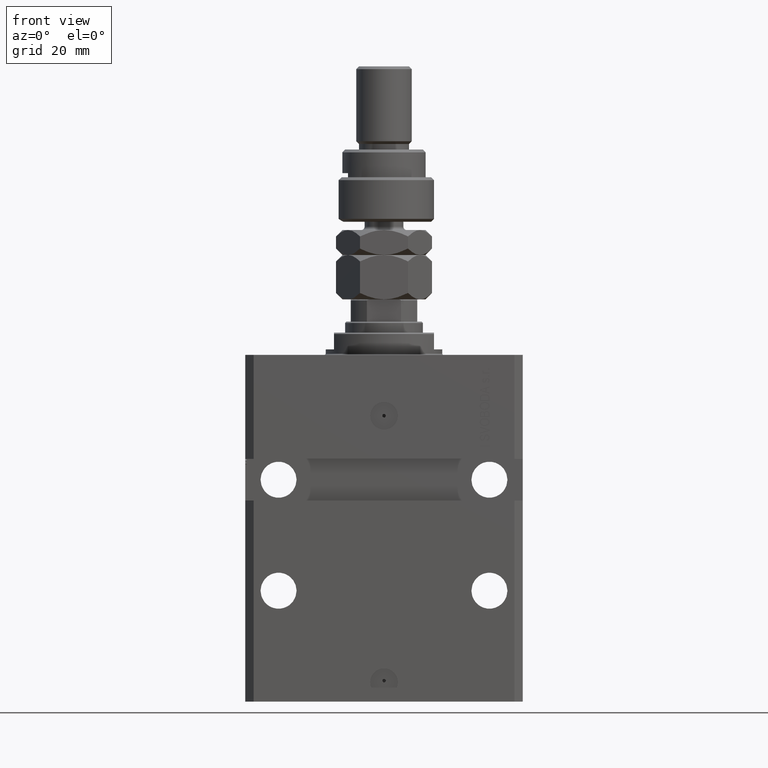
[diagram: clean part render]
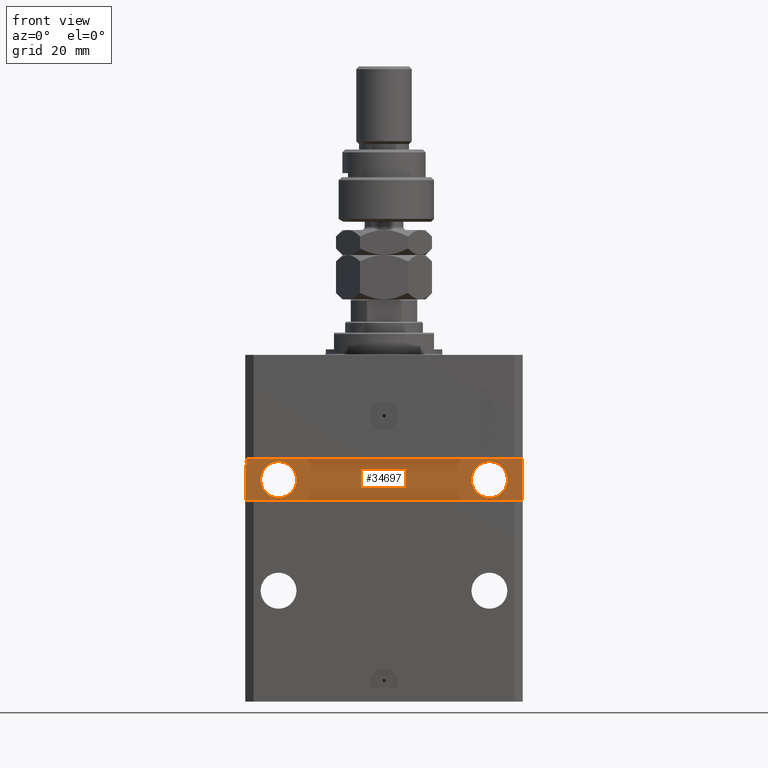
[diagram: same view with one face highlighted and labeled with its STEP entity id]
A machine part, front view. The second image highlights one B-rep face of the part: STEP entity #34697.
In plain terms, the highlighted planar face has unit normal (0, -1, 0).
Its self-contained STEP definition (entity closure, byte-faithful):
#507 = CIRCLE ( 'NONE', #27682, 6.499999999999999112 ) ;
#565 = CARTESIAN_POINT ( 'NONE',  ( -49.50000000000000711, -32.50000000000000711, -37.99999999999999289 ) ) ;
#654 = VECTOR ( 'NONE', #12902, 1000.000000000000000 ) ;
#825 = EDGE_LOOP ( 'NONE', ( #48045, #41441, #9335, #9386, #28758, #48942, #4748, #17141, #31342, #40549, #2488, #8431 ) ) ;
#1112 = LINE ( 'NONE', #1879, #7218 ) ;
#1551 = LINE ( 'NONE', #14173, #29982 ) ;
#1632 = DIRECTION ( 'NONE',  ( 1.000000000000000000, 1.387778780781445676E-16, 1.387778780781445676E-16 ) ) ;
#1879 = CARTESIAN_POINT ( 'NONE',  ( -50.00000000000001421, -32.50000000000000711, -52.50000000000000000 ) ) ;
#1882 = VECTOR ( 'NONE', #29688, 1000.000000000000000 ) ;
#1892 = VERTEX_POINT ( 'NONE', #19549 ) ;
#2255 = DIRECTION ( 'NONE',  ( 1.000000000000000000, 0.000000000000000000, 0.000000000000000000 ) ) ;
#2440 = CARTESIAN_POINT ( 'NONE',  ( -50.00000000000001421, -32.50000000000000711, -38.87066340383893959 ) ) ;
#2446 = ORIENTED_EDGE ( 'NONE', *, *, #40311, .F. ) ;
#2488 = ORIENTED_EDGE ( 'NONE', *, *, #51044, .T. ) ;
#2601 = LINE ( 'NONE', #10335, #41249 ) ;
#2623 = EDGE_CURVE ( 'NONE', #45923, #33129, #50631, .T. ) ;
#2709 = DIRECTION ( 'NONE',  ( 0.000000000000000000, 0.000000000000000000, -1.000000000000000000 ) ) ;
#2801 = EDGE_CURVE ( 'NONE', #21643, #12951, #45695, .T. ) ;
#4748 = ORIENTED_EDGE ( 'NONE', *, *, #2801, .T. ) ;
#4764 = ORIENTED_EDGE ( 'NONE', *, *, #27786, .F. ) ;
#5071 = EDGE_CURVE ( 'NONE', #20356, #33129, #1551, .T. ) ;
#5143 = FACE_OUTER_BOUND ( 'NONE', #825, .T. ) ;
#5370 = CARTESIAN_POINT ( 'NONE',  ( -49.49999999999999289, -32.50000000000000711, -39.43474004052496440 ) ) ;
#6104 = LINE ( 'NONE', #49488, #30396 ) ;
#7218 = VECTOR ( 'NONE', #1632, 1000.000000000000000 ) ;
#8261 = FACE_BOUND ( 'NONE', #26591, .T. ) ;
#8412 = LINE ( 'NONE', #24665, #34281 ) ;
#8431 = ORIENTED_EDGE ( 'NONE', *, *, #50920, .T. ) ;
#9335 = ORIENTED_EDGE ( 'NONE', *, *, #44278, .F. ) ;
#9386 = ORIENTED_EDGE ( 'NONE', *, *, #26863, .F. ) ;
#9481 = VERTEX_POINT ( 'NONE', #26756 ) ;
#9796 = LINE ( 'NONE', #20368, #654 ) ;
#9806 = DIRECTION ( 'NONE',  ( 1.000000000000000000, 0.000000000000000000, 0.000000000000000000 ) ) ;
#10335 = CARTESIAN_POINT ( 'NONE',  ( -50.00000000000001421, -32.50000000000000711, -37.50000000000000711 ) ) ;
#10529 = VECTOR ( 'NONE', #45991, 1000.000000000000000 ) ;
#11235 = CARTESIAN_POINT ( 'NONE',  ( 38.00000000000001421, -32.50000000000000000, -45.00000000000000000 ) ) ;
#11633 = DIRECTION ( 'NONE',  ( -1.000000000000000000, -0.000000000000000000, -0.000000000000000000 ) ) ;
#12155 = VERTEX_POINT ( 'NONE', #5370 ) ;
#12486 = VERTEX_POINT ( 'NONE', #565 ) ;
#12902 = DIRECTION ( 'NONE',  ( 0.000000000000000000, 0.000000000000000000, -1.000000000000000000 ) ) ;
#12951 = VERTEX_POINT ( 'NONE', #35268 ) ;
#13265 = VERTEX_POINT ( 'NONE', #37577 ) ;
#13944 = CARTESIAN_POINT ( 'NONE',  ( 49.99999999999999289, -32.49999999999999289, -52.49999999999998579 ) ) ;
#14020 = VERTEX_POINT ( 'NONE', #39410 ) ;
#14173 = CARTESIAN_POINT ( 'NONE',  ( -50.00000000000001421, -32.50000000000000711, -37.50000000000000711 ) ) ;
#14363 = CIRCLE ( 'NONE', #49826, 6.499999999999999112 ) ;
#14865 = CARTESIAN_POINT ( 'NONE',  ( -49.49999999999977973, -32.50000000000000711, -38.87066337907741342 ) ) ;
#15342 = VERTEX_POINT ( 'NONE', #14865 ) ;
#17141 = ORIENTED_EDGE ( 'NONE', *, *, #50464, .T. ) ;
#18437 = LINE ( 'NONE', #38305, #38549 ) ;
#18749 = EDGE_CURVE ( 'NONE', #38070, #46787, #47414, .T. ) ;
#19329 = ORIENTED_EDGE ( 'NONE', *, *, #20885, .F. ) ;
#19549 = CARTESIAN_POINT ( 'NONE',  ( -50.00000000000001421, -32.50000000000000711, -39.43474002179300442 ) ) ;
#19968 = EDGE_CURVE ( 'NONE', #15342, #30393, #44207, .T. ) ;
#20096 = DIRECTION ( 'NONE',  ( 1.000000000000000000, 1.387778780781445676E-16, 0.000000000000000000 ) ) ;
#20260 = CARTESIAN_POINT ( 'NONE',  ( 38.00000000000001421, -32.50000000000000000, -45.00000000000000000 ) ) ;
#20356 = VERTEX_POINT ( 'NONE', #22678 ) ;
#20368 = CARTESIAN_POINT ( 'NONE',  ( -49.50000000000000711, -32.49999999999999289, -37.62144886363635976 ) ) ;
#20885 = EDGE_CURVE ( 'NONE', #9481, #14020, #507, .T. ) ;
#20886 = DIRECTION ( 'NONE',  ( 1.101411730780568590E-16, -1.000000000000000000, 0.000000000000000000 ) ) ;
#21643 = VERTEX_POINT ( 'NONE', #44952 ) ;
#21852 = CARTESIAN_POINT ( 'NONE',  ( -49.50000000000000711, -32.50000000000000711, -37.62144886363635976 ) ) ;
#22028 = DIRECTION ( 'NONE',  ( -1.000000000000000000, -1.387778780781445676E-16, -1.387778780781445676E-16 ) ) ;
#22169 = DIRECTION ( 'NONE',  ( 0.000000000000000000, 0.000000000000000000, -1.000000000000000000 ) ) ;
#22228 = CARTESIAN_POINT ( 'NONE',  ( -49.50000000000000711, -32.49999999999999289, -37.99999999999999289 ) ) ;
#22283 = CARTESIAN_POINT ( 'NONE',  ( 49.99999999999999289, -32.49999999999999289, -37.49999999999999289 ) ) ;
#22678 = CARTESIAN_POINT ( 'NONE',  ( -50.00000000000001421, -32.50000000000000711, -37.50000000000000711 ) ) ;
#23033 = LINE ( 'NONE', #22283, #27826 ) ;
#23515 = EDGE_CURVE ( 'NONE', #47209, #21643, #1112, .T. ) ;
#23987 = PLANE ( 'NONE',  #33837 ) ;
#24665 = CARTESIAN_POINT ( 'NONE',  ( -49.50000000000016342, -32.50000000000000711, -39.86910993535713743 ) ) ;
#25195 = VECTOR ( 'NONE', #41345, 1000.000000000000000 ) ;
#26191 = CARTESIAN_POINT ( 'NONE',  ( -50.00000000000001421, -32.50000000000000711, -52.50000000000000000 ) ) ;
#26591 = EDGE_LOOP ( 'NONE', ( #48960, #4764 ) ) ;
#26756 = CARTESIAN_POINT ( 'NONE',  ( -31.49999999999998579, -32.50000000000000711, -45.00000000000000711 ) ) ;
#26863 = EDGE_CURVE ( 'NONE', #1892, #12155, #6104, .T. ) ;
#26976 = DIRECTION ( 'NONE',  ( 8.806446732139697737E-17, -1.000000000000000000, 1.232595164407830672E-32 ) ) ;
#27224 = DIRECTION ( 'NONE',  ( 1.000000000000000000, 0.000000000000000000, 0.000000000000000000 ) ) ;
#27682 = AXIS2_PLACEMENT_3D ( 'NONE', #40050, #40309, #32573 ) ;
#27786 = EDGE_CURVE ( 'NONE', #46787, #38070, #47740, .T. ) ;
#27826 = VECTOR ( 'NONE', #22028, 1000.000000000000000 ) ;
#28758 = ORIENTED_EDGE ( 'NONE', *, *, #29077, .T. ) ;
#29077 = EDGE_CURVE ( 'NONE', #1892, #47209, #18437, .T. ) ;
#29411 = CARTESIAN_POINT ( 'NONE',  ( -37.99999999999998579, -32.50000000000000711, -45.00000000000000711 ) ) ;
#29688 = DIRECTION ( 'NONE',  ( 0.000000000000000000, 0.000000000000000000, 1.000000000000000000 ) ) ;
#29723 = LINE ( 'NONE', #22228, #10529 ) ;
#29982 = VECTOR ( 'NONE', #22169, 1000.000000000000000 ) ;
#30393 = VERTEX_POINT ( 'NONE', #2440 ) ;
#30396 = VECTOR ( 'NONE', #2255, 1000.000000000000000 ) ;
#30429 = AXIS2_PLACEMENT_3D ( 'NONE', #20260, #31375, #47124 ) ;
#31342 = ORIENTED_EDGE ( 'NONE', *, *, #5071, .T. ) ;
#31375 = DIRECTION ( 'NONE',  ( 8.806446732139697737E-17, -1.000000000000000000, 1.232595164407830672E-32 ) ) ;
#32573 = DIRECTION ( 'NONE',  ( 1.000000000000000000, 0.000000000000000000, 0.000000000000000000 ) ) ;
#32660 = DIRECTION ( 'NONE',  ( 3.791485858024926499E-13, 5.261743621399925654E-29, 1.000000000000000000 ) ) ;
#32765 = CARTESIAN_POINT ( 'NONE',  ( 4.616128571667027759E-15, -32.50000000000000000, 0.000000000000000000 ) ) ;
#32986 = CARTESIAN_POINT ( 'NONE',  ( 31.50000000000001421, -32.50000000000000000, -45.00000000000000000 ) ) ;
#33129 = VERTEX_POINT ( 'NONE', #42015 ) ;
#33826 = EDGE_CURVE ( 'NONE', #13265, #30393, #2601, .T. ) ;
#33837 = AXIS2_PLACEMENT_3D ( 'NONE', #32765, #40500, #20096 ) ;
#34281 = VECTOR ( 'NONE', #32660, 1000.000000000000000 ) ;
#34697 = ADVANCED_FACE ( 'NONE', ( #8261, #39722, #5143 ), #23987, .T. ) ;
#35268 = CARTESIAN_POINT ( 'NONE',  ( 49.99999999999999289, -32.49999999999999289, -37.49999999999999289 ) ) ;
#36449 = CARTESIAN_POINT ( 'NONE',  ( -49.50000000000001421, -32.50000000000001421, -38.87066340383893959 ) ) ;
#37577 = CARTESIAN_POINT ( 'NONE',  ( -50.00000000000001421, -32.50000000000000711, -37.99999999999999289 ) ) ;
#38070 = VERTEX_POINT ( 'NONE', #45816 ) ;
#38150 = VECTOR ( 'NONE', #11633, 1000.000000000000000 ) ;
#38193 = EDGE_LOOP ( 'NONE', ( #19329, #2446 ) ) ;
#38305 = CARTESIAN_POINT ( 'NONE',  ( -50.00000000000001421, -32.50000000000000711, -37.50000000000000711 ) ) ;
#38549 = VECTOR ( 'NONE', #2709, 1000.000000000000000 ) ;
#39410 = CARTESIAN_POINT ( 'NONE',  ( -44.49999999999998579, -32.50000000000000711, -45.00000000000000711 ) ) ;
#39722 = FACE_BOUND ( 'NONE', #38193, .T. ) ;
#40050 = CARTESIAN_POINT ( 'NONE',  ( -37.99999999999998579, -32.50000000000000711, -45.00000000000000711 ) ) ;
#40309 = DIRECTION ( 'NONE',  ( 1.101411730780568590E-16, -1.000000000000000000, 0.000000000000000000 ) ) ;
#40311 = EDGE_CURVE ( 'NONE', #14020, #9481, #14363, .T. ) ;
#40500 = DIRECTION ( 'NONE',  ( 1.387778780781445676E-16, -1.000000000000000000, 0.000000000000000000 ) ) ;
#40549 = ORIENTED_EDGE ( 'NONE', *, *, #2623, .F. ) ;
#41249 = VECTOR ( 'NONE', #44945, 1000.000000000000000 ) ;
#41345 = DIRECTION ( 'NONE',  ( -1.000000000000000000, -0.000000000000000000, -0.000000000000000000 ) ) ;
#41441 = ORIENTED_EDGE ( 'NONE', *, *, #19968, .F. ) ;
#42015 = CARTESIAN_POINT ( 'NONE',  ( -50.00000000000001421, -32.50000000000000711, -37.62144886363636687 ) ) ;
#44207 = LINE ( 'NONE', #36449, #25195 ) ;
#44278 = EDGE_CURVE ( 'NONE', #12155, #15342, #8412, .T. ) ;
#44945 = DIRECTION ( 'NONE',  ( 0.000000000000000000, 0.000000000000000000, -1.000000000000000000 ) ) ;
#44952 = CARTESIAN_POINT ( 'NONE',  ( 49.99999999999999289, -32.49999999999999289, -52.49999999999998579 ) ) ;
#45695 = LINE ( 'NONE', #13944, #1882 ) ;
#45816 = CARTESIAN_POINT ( 'NONE',  ( 44.50000000000001421, -32.50000000000000000, -45.00000000000000000 ) ) ;
#45923 = VERTEX_POINT ( 'NONE', #21852 ) ;
#45991 = DIRECTION ( 'NONE',  ( -1.000000000000000000, -0.000000000000000000, -0.000000000000000000 ) ) ;
#46572 = AXIS2_PLACEMENT_3D ( 'NONE', #11235, #26976, #27224 ) ;
#46787 = VERTEX_POINT ( 'NONE', #32986 ) ;
#47124 = DIRECTION ( 'NONE',  ( 1.000000000000000000, 0.000000000000000000, 0.000000000000000000 ) ) ;
#47209 = VERTEX_POINT ( 'NONE', #26191 ) ;
#47414 = CIRCLE ( 'NONE', #46572, 6.499999999999999112 ) ;
#47740 = CIRCLE ( 'NONE', #30429, 6.499999999999999112 ) ;
#47768 = CARTESIAN_POINT ( 'NONE',  ( -49.50000000000000711, -32.49999999999999289, -37.62144886363635976 ) ) ;
#48045 = ORIENTED_EDGE ( 'NONE', *, *, #33826, .T. ) ;
#48942 = ORIENTED_EDGE ( 'NONE', *, *, #23515, .T. ) ;
#48960 = ORIENTED_EDGE ( 'NONE', *, *, #18749, .F. ) ;
#49488 = CARTESIAN_POINT ( 'NONE',  ( -49.50000000000001421, -32.50000000000000711, -39.43474002179300442 ) ) ;
#49826 = AXIS2_PLACEMENT_3D ( 'NONE', #29411, #20886, #9806 ) ;
#50464 = EDGE_CURVE ( 'NONE', #12951, #20356, #23033, .T. ) ;
#50631 = LINE ( 'NONE', #47768, #38150 ) ;
#50920 = EDGE_CURVE ( 'NONE', #12486, #13265, #29723, .T. ) ;
#51044 = EDGE_CURVE ( 'NONE', #45923, #12486, #9796, .T. ) ;